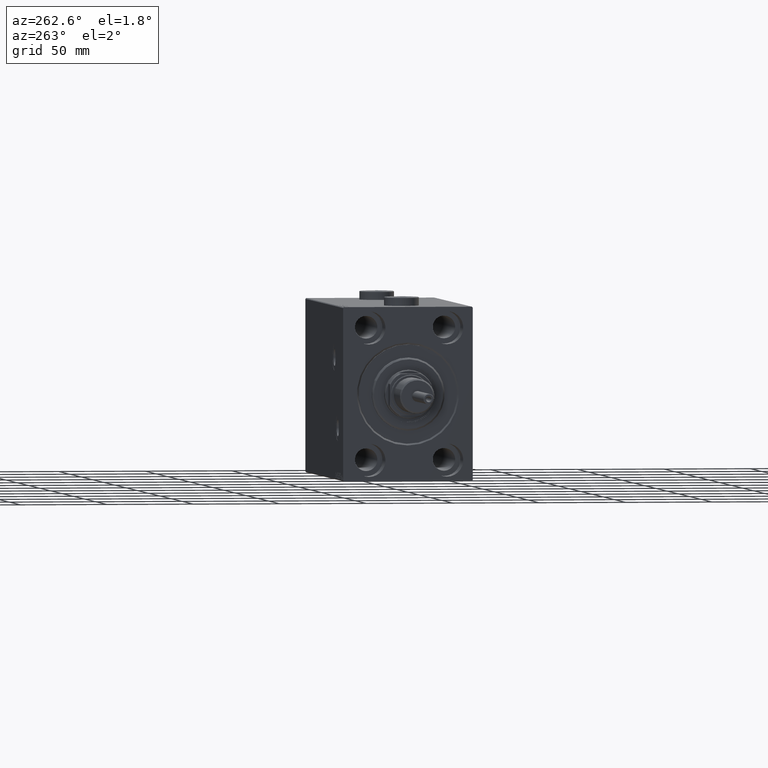
[diagram: clean part render]
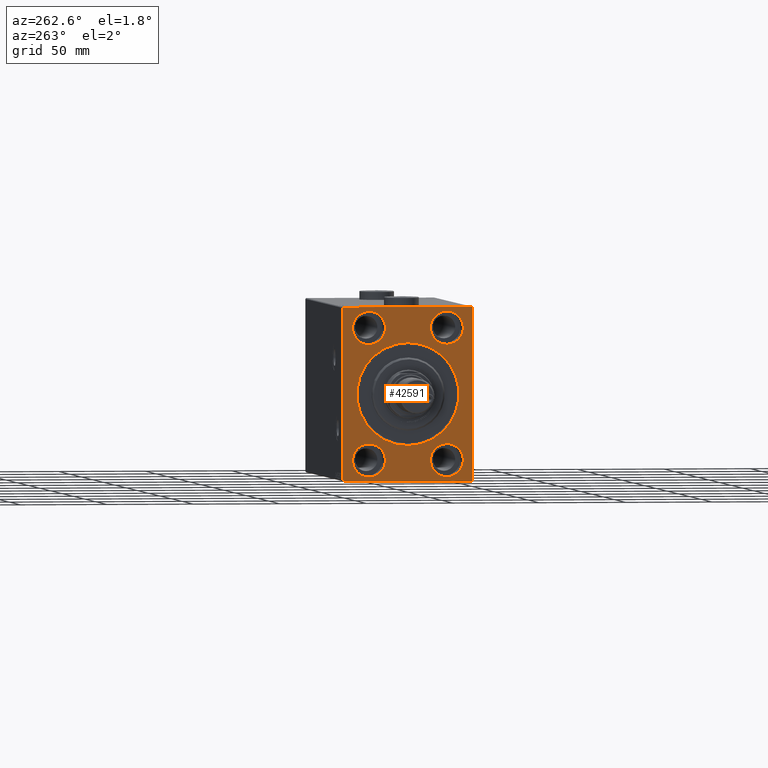
[diagram: same view with one face highlighted and labeled with its STEP entity id]
A machine part, auxiliary view. The second image highlights one B-rep face of the part: STEP entity #42591.
In plain terms, the highlighted planar face has unit normal (1, 0, 0).
Its self-contained STEP definition (entity closure, byte-faithful):
#126 = FACE_BOUND ( 'NONE', #36070, .T. ) ;
#441 = CARTESIAN_POINT ( 'NONE',  ( 0.000000000000000000, -22.50000000000000711, -28.49999999999999645 ) ) ;
#448 = EDGE_CURVE ( 'NONE', #19502, #35117, #39665, .T. ) ;
#957 = DIRECTION ( 'NONE',  ( -1.000000000000000000, 0.000000000000000000, 0.000000000000000000 ) ) ;
#1265 = CIRCLE ( 'NONE', #48218, 9.500000000000001776 ) ;
#1381 = DIRECTION ( 'NONE',  ( -1.000000000000000000, 0.000000000000000000, 0.000000000000000000 ) ) ;
#1609 = ORIENTED_EDGE ( 'NONE', *, *, #4846, .F. ) ;
#1731 = CARTESIAN_POINT ( 'NONE',  ( 0.000000000000000000, 0.000000000000000000, 0.000000000000000000 ) ) ;
#1834 = VERTEX_POINT ( 'NONE', #47334 ) ;
#2108 = CARTESIAN_POINT ( 'NONE',  ( 0.000000000000000000, -22.50000000000000711, -38.00000000000000000 ) ) ;
#2809 = PLANE ( 'NONE',  #18777 ) ;
#3098 = VECTOR ( 'NONE', #33370, 1000.000000000000114 ) ;
#3788 = DIRECTION ( 'NONE',  ( -0.000000000000000000, 0.7071067811865279218, 0.7071067811865672237 ) ) ;
#4241 = DIRECTION ( 'NONE',  ( 1.000000000000000000, 0.000000000000000000, 0.000000000000000000 ) ) ;
#4374 = CARTESIAN_POINT ( 'NONE',  ( 0.000000000000000000, 36.99999999999998579, 50.00000000000001421 ) ) ;
#4454 = EDGE_CURVE ( 'NONE', #34690, #36276, #40411, .T. ) ;
#4846 = EDGE_CURVE ( 'NONE', #45073, #7922, #31747, .T. ) ;
#4991 = CARTESIAN_POINT ( 'NONE',  ( 0.000000000000000000, 22.49999999999999289, -38.00000000000000000 ) ) ;
#4994 = CIRCLE ( 'NONE', #15169, 9.500000000000001776 ) ;
#5202 = DIRECTION ( 'NONE',  ( 0.000000000000000000, 0.000000000000000000, 1.000000000000000000 ) ) ;
#5486 = EDGE_CURVE ( 'NONE', #29255, #33623, #24016, .T. ) ;
#5589 = ORIENTED_EDGE ( 'NONE', *, *, #24698, .F. ) ;
#6049 = ORIENTED_EDGE ( 'NONE', *, *, #45320, .F. ) ;
#6105 = ORIENTED_EDGE ( 'NONE', *, *, #27254, .F. ) ;
#6160 = DIRECTION ( 'NONE',  ( -1.000000000000000000, 0.000000000000000000, 0.000000000000000000 ) ) ;
#6260 = CARTESIAN_POINT ( 'NONE',  ( 0.000000000000000000, -22.50000000000000711, -38.00000000000000000 ) ) ;
#7089 = VECTOR ( 'NONE', #32124, 1000.000000000000000 ) ;
#7459 = DIRECTION ( 'NONE',  ( 0.000000000000000000, 0.000000000000000000, -1.000000000000000000 ) ) ;
#7465 = CARTESIAN_POINT ( 'NONE',  ( 0.000000000000000000, -37.50000000000000000, 49.49999999999995737 ) ) ;
#7852 = ORIENTED_EDGE ( 'NONE', *, *, #11765, .T. ) ;
#7914 = DIRECTION ( 'NONE',  ( 0.000000000000000000, 0.000000000000000000, -1.000000000000000000 ) ) ;
#7922 = VERTEX_POINT ( 'NONE', #41501 ) ;
#8209 = CARTESIAN_POINT ( 'NONE',  ( 0.000000000000000000, -37.50000000000000000, 49.99999999999998579 ) ) ;
#8362 = AXIS2_PLACEMENT_3D ( 'NONE', #1731, #19862, #38728 ) ;
#8673 = CIRCLE ( 'NONE', #29029, 9.500000000000001776 ) ;
#8788 = ORIENTED_EDGE ( 'NONE', *, *, #448, .T. ) ;
#9156 = VECTOR ( 'NONE', #25959, 1000.000000000000114 ) ;
#9365 = CARTESIAN_POINT ( 'NONE',  ( 0.000000000000000000, -22.50000000000000711, 38.00000000000000000 ) ) ;
#9366 = AXIS2_PLACEMENT_3D ( 'NONE', #9365, #39272, #5202 ) ;
#10102 = EDGE_CURVE ( 'NONE', #35117, #19502, #12480, .T. ) ;
#10318 = EDGE_CURVE ( 'NONE', #23822, #12886, #47711, .T. ) ;
#11121 = EDGE_CURVE ( 'NONE', #27215, #1834, #19545, .T. ) ;
#11262 = CARTESIAN_POINT ( 'NONE',  ( 0.000000000000000000, -37.00000000000000000, -50.00000000000001421 ) ) ;
#11765 = EDGE_CURVE ( 'NONE', #45073, #40327, #30425, .T. ) ;
#12480 = CIRCLE ( 'NONE', #24187, 29.50000000000000355 ) ;
#12886 = VERTEX_POINT ( 'NONE', #38691 ) ;
#13339 = EDGE_CURVE ( 'NONE', #33623, #29255, #8673, .T. ) ;
#13374 = DIRECTION ( 'NONE',  ( 0.000000000000000000, -1.000000000000000000, -3.700743415417189125E-16 ) ) ;
#13493 = CARTESIAN_POINT ( 'NONE',  ( 0.000000000000000000, 37.49999999999998579, 49.50000000000001421 ) ) ;
#13582 = DIRECTION ( 'NONE',  ( -1.000000000000000000, 0.000000000000000000, 0.000000000000000000 ) ) ;
#13809 = DIRECTION ( 'NONE',  ( 0.000000000000000000, 0.000000000000000000, 1.000000000000000000 ) ) ;
#13847 = AXIS2_PLACEMENT_3D ( 'NONE', #2108, #1381, #16805 ) ;
#13981 = CARTESIAN_POINT ( 'NONE',  ( 0.000000000000000000, 3.612708057484691604E-15, -29.50000000000000355 ) ) ;
#14095 = DIRECTION ( 'NONE',  ( -1.000000000000000000, 0.000000000000000000, 0.000000000000000000 ) ) ;
#14326 = FACE_BOUND ( 'NONE', #20808, .T. ) ;
#14798 = CARTESIAN_POINT ( 'NONE',  ( 0.000000000000000000, -22.50000000000000711, 38.00000000000000000 ) ) ;
#15076 = CARTESIAN_POINT ( 'NONE',  ( 0.000000000000000000, 22.49999999999999289, 28.49999999999999645 ) ) ;
#15169 = AXIS2_PLACEMENT_3D ( 'NONE', #46031, #957, #42347 ) ;
#15796 = LINE ( 'NONE', #30511, #23907 ) ;
#16382 = CIRCLE ( 'NONE', #36059, 9.500000000000001776 ) ;
#16501 = CIRCLE ( 'NONE', #24291, 9.500000000000001776 ) ;
#16683 = ORIENTED_EDGE ( 'NONE', *, *, #11121, .F. ) ;
#16805 = DIRECTION ( 'NONE',  ( 0.000000000000000000, 0.000000000000000000, 1.000000000000000000 ) ) ;
#16877 = EDGE_LOOP ( 'NONE', ( #22482, #47817 ) ) ;
#17086 = EDGE_CURVE ( 'NONE', #12886, #23822, #16501, .T. ) ;
#17177 = LINE ( 'NONE', #35800, #7089 ) ;
#17626 = ORIENTED_EDGE ( 'NONE', *, *, #29723, .F. ) ;
#17836 = EDGE_LOOP ( 'NONE', ( #6049, #16683 ) ) ;
#17853 = CARTESIAN_POINT ( 'NONE',  ( 0.000000000000000000, 22.49999999999999289, -28.49999999999999645 ) ) ;
#17862 = CARTESIAN_POINT ( 'NONE',  ( 0.000000000000000000, 22.49999999999999289, 47.50000000000000000 ) ) ;
#18024 = CARTESIAN_POINT ( 'NONE',  ( 0.000000000000000000, 36.99999999999997158, -50.00000000000000000 ) ) ;
#18158 = DIRECTION ( 'NONE',  ( 0.000000000000000000, 0.000000000000000000, 1.000000000000000000 ) ) ;
#18396 = CARTESIAN_POINT ( 'NONE',  ( 0.000000000000000000, 22.49999999999999289, -38.00000000000000000 ) ) ;
#18777 = AXIS2_PLACEMENT_3D ( 'NONE', #33199, #29768, #7459 ) ;
#18944 = CARTESIAN_POINT ( 'NONE',  ( 0.000000000000000000, 0.000000000000000000, 0.000000000000000000 ) ) ;
#18963 = DIRECTION ( 'NONE',  ( 0.000000000000000000, 0.000000000000000000, 1.000000000000000000 ) ) ;
#19502 = VERTEX_POINT ( 'NONE', #38923 ) ;
#19545 = CIRCLE ( 'NONE', #9366, 9.500000000000001776 ) ;
#19862 = DIRECTION ( 'NONE',  ( 1.000000000000000000, 0.000000000000000000, 0.000000000000000000 ) ) ;
#19933 = DIRECTION ( 'NONE',  ( -1.000000000000000000, 0.000000000000000000, 0.000000000000000000 ) ) ;
#20471 = CARTESIAN_POINT ( 'NONE',  ( 0.000000000000000000, -22.50000000000000711, -47.50000000000000000 ) ) ;
#20808 = EDGE_LOOP ( 'NONE', ( #34290, #21237 ) ) ;
#20833 = VERTEX_POINT ( 'NONE', #15076 ) ;
#21072 = ORIENTED_EDGE ( 'NONE', *, *, #24581, .T. ) ;
#21087 = AXIS2_PLACEMENT_3D ( 'NONE', #18396, #6160, #18158 ) ;
#21237 = ORIENTED_EDGE ( 'NONE', *, *, #17086, .F. ) ;
#21928 = LINE ( 'NONE', #7465, #24329 ) ;
#22010 = CARTESIAN_POINT ( 'NONE',  ( 0.000000000000000000, -37.50000000000000000, -49.50000000000001421 ) ) ;
#22482 = ORIENTED_EDGE ( 'NONE', *, *, #5486, .F. ) ;
#22943 = ORIENTED_EDGE ( 'NONE', *, *, #28746, .F. ) ;
#23822 = VERTEX_POINT ( 'NONE', #17853 ) ;
#23907 = VECTOR ( 'NONE', #30749, 1000.000000000000000 ) ;
#24016 = CIRCLE ( 'NONE', #13847, 9.500000000000001776 ) ;
#24187 = AXIS2_PLACEMENT_3D ( 'NONE', #18944, #4241, #7914 ) ;
#24291 = AXIS2_PLACEMENT_3D ( 'NONE', #4991, #19933, #37842 ) ;
#24329 = VECTOR ( 'NONE', #3788, 1000.000000000000000 ) ;
#24386 = CARTESIAN_POINT ( 'NONE',  ( 0.000000000000000000, 37.49999999999998579, 50.00000000000001421 ) ) ;
#24581 = EDGE_CURVE ( 'NONE', #43370, #29371, #42828, .T. ) ;
#24585 = CARTESIAN_POINT ( 'NONE',  ( 0.000000000000000000, -37.00000000000000000, -50.00000000000001421 ) ) ;
#24626 = DIRECTION ( 'NONE',  ( 0.000000000000000000, 0.000000000000000000, 1.000000000000000000 ) ) ;
#24698 = EDGE_CURVE ( 'NONE', #39621, #20833, #4994, .T. ) ;
#25958 = EDGE_LOOP ( 'NONE', ( #6105, #32431, #1609, #7852, #22943, #21072, #35280, #47103 ) ) ;
#25959 = DIRECTION ( 'NONE',  ( -0.000000000000000000, -0.7071067811865474617, 0.7071067811865474617 ) ) ;
#26086 = FACE_BOUND ( 'NONE', #17836, .T. ) ;
#26112 = LINE ( 'NONE', #8209, #45803 ) ;
#27215 = VERTEX_POINT ( 'NONE', #37872 ) ;
#27225 = CARTESIAN_POINT ( 'NONE',  ( 0.000000000000000000, -37.50000000000000000, 49.49999999999995737 ) ) ;
#27254 = EDGE_CURVE ( 'NONE', #45821, #36276, #26112, .T. ) ;
#28746 = EDGE_CURVE ( 'NONE', #43370, #40327, #15796, .T. ) ;
#29029 = AXIS2_PLACEMENT_3D ( 'NONE', #6260, #14095, #24626 ) ;
#29255 = VERTEX_POINT ( 'NONE', #441 ) ;
#29371 = VERTEX_POINT ( 'NONE', #18024 ) ;
#29723 = EDGE_CURVE ( 'NONE', #20833, #39621, #1265, .T. ) ;
#29768 = DIRECTION ( 'NONE',  ( 1.000000000000000000, 0.000000000000000000, 0.000000000000000000 ) ) ;
#30425 = LINE ( 'NONE', #45130, #3098 ) ;
#30511 = CARTESIAN_POINT ( 'NONE',  ( 0.000000000000000000, 37.50000000000000000, -50.00000000000000000 ) ) ;
#30749 = DIRECTION ( 'NONE',  ( 0.000000000000000000, -1.387778780781445429E-16, 1.000000000000000000 ) ) ;
#31747 = LINE ( 'NONE', #24386, #34223 ) ;
#32124 = DIRECTION ( 'NONE',  ( 0.000000000000000000, 1.000000000000000000, 1.850371707708594316E-16 ) ) ;
#32431 = ORIENTED_EDGE ( 'NONE', *, *, #47611, .T. ) ;
#32712 = FACE_BOUND ( 'NONE', #47438, .T. ) ;
#33199 = CARTESIAN_POINT ( 'NONE',  ( 0.000000000000000000, 0.000000000000000000, 0.000000000000000000 ) ) ;
#33370 = DIRECTION ( 'NONE',  ( -0.000000000000000000, 0.7071067811865474617, -0.7071067811865474617 ) ) ;
#33623 = VERTEX_POINT ( 'NONE', #20471 ) ;
#34160 = DIRECTION ( 'NONE',  ( -1.000000000000000000, 0.000000000000000000, 0.000000000000000000 ) ) ;
#34223 = VECTOR ( 'NONE', #13374, 1000.000000000000000 ) ;
#34290 = ORIENTED_EDGE ( 'NONE', *, *, #10318, .F. ) ;
#34690 = VERTEX_POINT ( 'NONE', #24585 ) ;
#35117 = VERTEX_POINT ( 'NONE', #13981 ) ;
#35280 = ORIENTED_EDGE ( 'NONE', *, *, #44143, .F. ) ;
#35800 = CARTESIAN_POINT ( 'NONE',  ( 0.000000000000000000, -37.50000000000000000, -50.00000000000001421 ) ) ;
#36059 = AXIS2_PLACEMENT_3D ( 'NONE', #14798, #34160, #18963 ) ;
#36070 = EDGE_LOOP ( 'NONE', ( #5589, #17626 ) ) ;
#36276 = VERTEX_POINT ( 'NONE', #22010 ) ;
#37842 = DIRECTION ( 'NONE',  ( 0.000000000000000000, 0.000000000000000000, 1.000000000000000000 ) ) ;
#37872 = CARTESIAN_POINT ( 'NONE',  ( 0.000000000000000000, -22.50000000000000711, 28.49999999999999645 ) ) ;
#38672 = DIRECTION ( 'NONE',  ( 0.000000000000000000, -0.7071067811865474617, -0.7071067811865474617 ) ) ;
#38691 = CARTESIAN_POINT ( 'NONE',  ( 0.000000000000000000, 22.49999999999999289, -47.50000000000000000 ) ) ;
#38728 = DIRECTION ( 'NONE',  ( 0.000000000000000000, 0.000000000000000000, -1.000000000000000000 ) ) ;
#38923 = CARTESIAN_POINT ( 'NONE',  ( 0.000000000000000000, 0.000000000000000000, 29.50000000000000355 ) ) ;
#39272 = DIRECTION ( 'NONE',  ( -1.000000000000000000, 0.000000000000000000, 0.000000000000000000 ) ) ;
#39621 = VERTEX_POINT ( 'NONE', #17862 ) ;
#39665 = CIRCLE ( 'NONE', #8362, 29.50000000000000355 ) ;
#40327 = VERTEX_POINT ( 'NONE', #13493 ) ;
#40411 = LINE ( 'NONE', #11262, #9156 ) ;
#41034 = FACE_OUTER_BOUND ( 'NONE', #25958, .T. ) ;
#41501 = CARTESIAN_POINT ( 'NONE',  ( 0.000000000000000000, -37.00000000000000000, 49.99999999999998579 ) ) ;
#42347 = DIRECTION ( 'NONE',  ( 0.000000000000000000, 0.000000000000000000, 1.000000000000000000 ) ) ;
#42591 = ADVANCED_FACE ( 'NONE', ( #32712, #44959, #26086, #126, #14326, #41034 ), #2809, .F. ) ;
#42828 = LINE ( 'NONE', #46520, #43337 ) ;
#43337 = VECTOR ( 'NONE', #38672, 1000.000000000000114 ) ;
#43370 = VERTEX_POINT ( 'NONE', #46540 ) ;
#43953 = CARTESIAN_POINT ( 'NONE',  ( 0.000000000000000000, 22.49999999999999289, 38.00000000000000000 ) ) ;
#44143 = EDGE_CURVE ( 'NONE', #34690, #29371, #17177, .T. ) ;
#44959 = FACE_BOUND ( 'NONE', #16877, .T. ) ;
#45073 = VERTEX_POINT ( 'NONE', #4374 ) ;
#45130 = CARTESIAN_POINT ( 'NONE',  ( 0.000000000000000000, 36.99999999999998579, 50.00000000000001421 ) ) ;
#45320 = EDGE_CURVE ( 'NONE', #1834, #27215, #16382, .T. ) ;
#45717 = DIRECTION ( 'NONE',  ( 0.000000000000000000, 0.000000000000000000, -1.000000000000000000 ) ) ;
#45803 = VECTOR ( 'NONE', #45717, 1000.000000000000000 ) ;
#45821 = VERTEX_POINT ( 'NONE', #27225 ) ;
#46031 = CARTESIAN_POINT ( 'NONE',  ( 0.000000000000000000, 22.49999999999999289, 38.00000000000000000 ) ) ;
#46509 = ORIENTED_EDGE ( 'NONE', *, *, #10102, .T. ) ;
#46520 = CARTESIAN_POINT ( 'NONE',  ( 0.000000000000000000, 37.50000000000000000, -49.49999999999997158 ) ) ;
#46540 = CARTESIAN_POINT ( 'NONE',  ( 0.000000000000000000, 37.50000000000000000, -49.49999999999997158 ) ) ;
#47103 = ORIENTED_EDGE ( 'NONE', *, *, #4454, .T. ) ;
#47334 = CARTESIAN_POINT ( 'NONE',  ( 0.000000000000000000, -22.50000000000000711, 47.50000000000000000 ) ) ;
#47438 = EDGE_LOOP ( 'NONE', ( #8788, #46509 ) ) ;
#47611 = EDGE_CURVE ( 'NONE', #45821, #7922, #21928, .T. ) ;
#47711 = CIRCLE ( 'NONE', #21087, 9.500000000000001776 ) ;
#47817 = ORIENTED_EDGE ( 'NONE', *, *, #13339, .F. ) ;
#48218 = AXIS2_PLACEMENT_3D ( 'NONE', #43953, #13582, #13809 ) ;